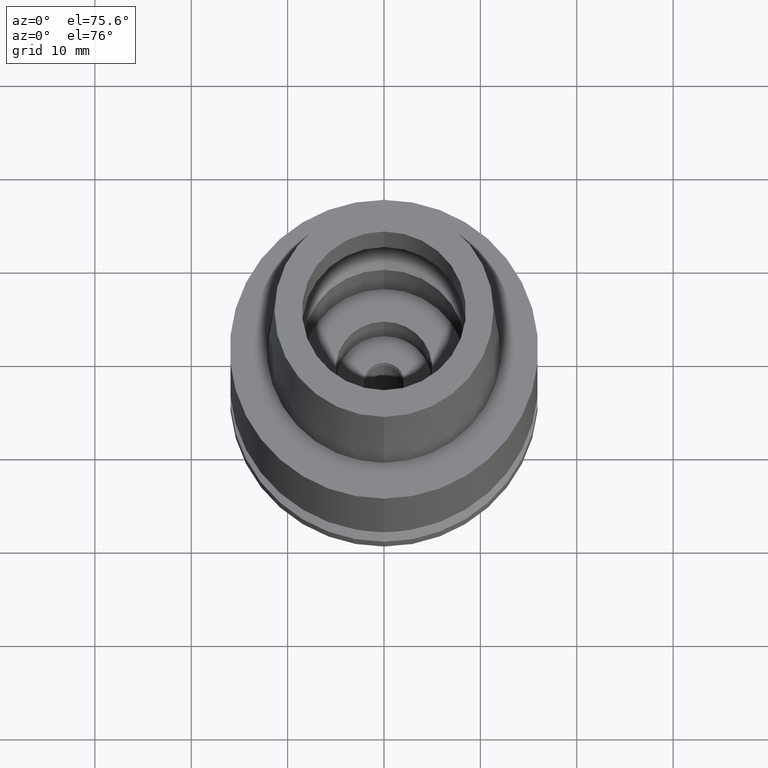
[diagram: clean part render]
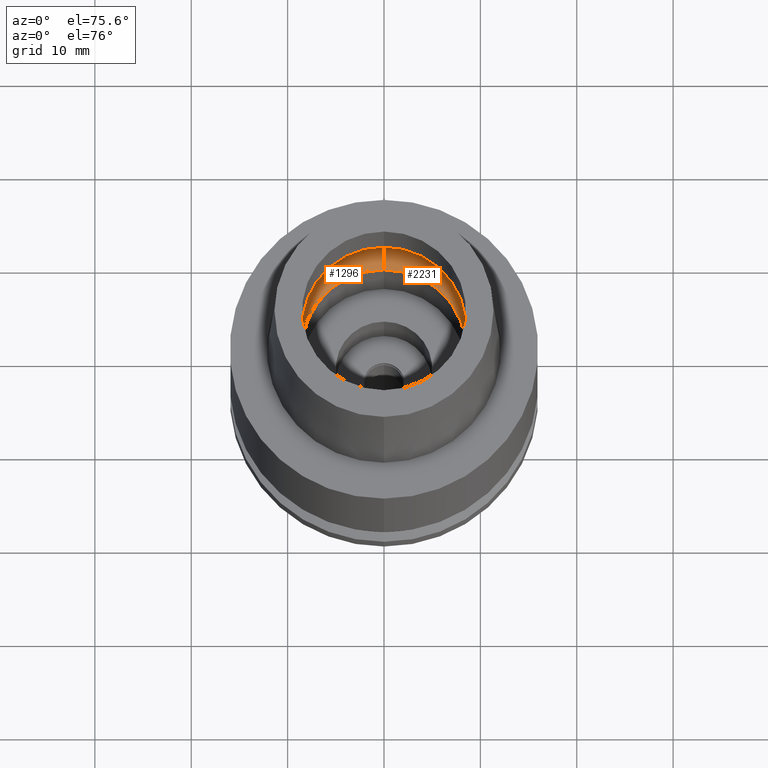
[diagram: same view with one multi-face feature highlighted, each face labeled with its STEP entity id]
A machine part, auxiliary view. The highlighted faces form ONE feature: a constant-radius fillet chain: 2 tangent blend faces with common blend radius 4 mm. The faces share edges in the B-rep.
Their STEP definitions:
[1] entity #1296 (Torus):
#13 = ORIENTED_EDGE ( 'NONE', *, *, #1220, .F. ) ;
#127 = EDGE_CURVE ( 'NONE', #856, #2577, #2622, .T. ) ;
#191 = CARTESIAN_POINT ( 'NONE',  ( 0.0000000000000000000, 6.250000000000000000, 3.357000000000000206 ) ) ;
#290 = EDGE_LOOP ( 'NONE', ( #664, #13, #2167, #1748 ) ) ;
#409 = CARTESIAN_POINT ( 'NONE',  ( 0.0000000000000000000, 8.500000000000000000, 0.04981086116925999979 ) ) ;
#424 = DIRECTION ( 'NONE',  ( 0.0000000000000000000, 0.0000000000000000000, -1.000000000000000000 ) ) ;
#480 = DIRECTION ( 'NONE',  ( 0.0000000000000000000, 0.0000000000000000000, 1.000000000000000000 ) ) ;
#489 = CARTESIAN_POINT ( 'NONE',  ( 0.0000000000000000000, 10.25000000000000000, 3.357000000000000206 ) ) ;
#554 = DIRECTION ( 'NONE',  ( 0.0000000000000000000, 0.0000000000000000000, -1.000000000000000000 ) ) ;
#559 = EDGE_CURVE ( 'NONE', #1555, #908, #2313, .T. ) ;
#588 = FACE_OUTER_BOUND ( 'NONE', #290, .T. ) ;
#664 = ORIENTED_EDGE ( 'NONE', *, *, #127, .F. ) ;
#674 = TOROIDAL_SURFACE ( 'NONE', #2318, 6.250000000000000000, 4.000000000000000000 ) ;
#781 = DIRECTION ( 'NONE',  ( 0.0000000000000000000, -1.000000000000000000, 0.0000000000000000000 ) ) ;
#801 = DIRECTION ( 'NONE',  ( 0.0000000000000000000, -1.000000000000000000, 0.0000000000000000000 ) ) ;
#856 = VERTEX_POINT ( 'NONE', #1012 ) ;
#908 = VERTEX_POINT ( 'NONE', #2692 ) ;
#1010 = DIRECTION ( 'NONE',  ( 0.0000000000000000000, -0.5624999999999932276, -0.8267972847076892062 ) ) ;
#1012 = CARTESIAN_POINT ( 'NONE',  ( 0.0000000000000000000, -10.25000000000000000, 3.357000000000000206 ) ) ;
#1220 = EDGE_CURVE ( 'NONE', #908, #856, #1314, .T. ) ;
#1232 = CARTESIAN_POINT ( 'NONE',  ( 0.0000000000000000000, 0.0000000000000000000, 3.357000000000000206 ) ) ;
#1296 = ADVANCED_FACE ( 'NONE', ( #588 ), #674, .F. ) ;
#1309 = DIRECTION ( 'NONE',  ( 0.0000000000000000000, 1.000000000000000000, 0.0000000000000000000 ) ) ;
#1314 = CIRCLE ( 'NONE', #2540, 3.999999999999999112 ) ;
#1409 = AXIS2_PLACEMENT_3D ( 'NONE', #191, #1639, #1654 ) ;
#1457 = EDGE_CURVE ( 'NONE', #1555, #2577, #1932, .T. ) ;
#1482 = AXIS2_PLACEMENT_3D ( 'NONE', #1232, #554, #781 ) ;
#1555 = VERTEX_POINT ( 'NONE', #409 ) ;
#1639 = DIRECTION ( 'NONE',  ( 1.000000000000000000, 0.0000000000000000000, 0.0000000000000000000 ) ) ;
#1654 = DIRECTION ( 'NONE',  ( 0.0000000000000000000, 0.5624999999999932276, -0.8267972847076892062 ) ) ;
#1725 = CARTESIAN_POINT ( 'NONE',  ( 0.0000000000000000000, 0.0000000000000000000, 0.04981086116925999979 ) ) ;
#1748 = ORIENTED_EDGE ( 'NONE', *, *, #1457, .T. ) ;
#1932 = CIRCLE ( 'NONE', #1409, 3.999999999999999112 ) ;
#1967 = AXIS2_PLACEMENT_3D ( 'NONE', #1725, #480, #1309 ) ;
#2092 = CARTESIAN_POINT ( 'NONE',  ( 0.0000000000000000000, -6.250000000000000000, 3.357000000000000206 ) ) ;
#2167 = ORIENTED_EDGE ( 'NONE', *, *, #559, .F. ) ;
#2313 = CIRCLE ( 'NONE', #1967, 8.500000000000000000 ) ;
#2318 = AXIS2_PLACEMENT_3D ( 'NONE', #2463, #424, #801 ) ;
#2463 = CARTESIAN_POINT ( 'NONE',  ( 0.0000000000000000000, 0.0000000000000000000, 3.357000000000000206 ) ) ;
#2494 = DIRECTION ( 'NONE',  ( -1.000000000000000000, 0.0000000000000000000, 0.0000000000000000000 ) ) ;
#2540 = AXIS2_PLACEMENT_3D ( 'NONE', #2092, #2494, #1010 ) ;
#2577 = VERTEX_POINT ( 'NONE', #489 ) ;
#2622 = CIRCLE ( 'NONE', #1482, 10.25000000000000000 ) ;
#2692 = CARTESIAN_POINT ( 'NONE',  ( 0.0000000000000000000, -8.500000000000000000, 0.04981086116925999979 ) ) ;
[2] entity #2231 (Torus):
#191 = CARTESIAN_POINT ( 'NONE',  ( 0.0000000000000000000, 6.250000000000000000, 3.357000000000000206 ) ) ;
#203 = DIRECTION ( 'NONE',  ( 0.0000000000000000000, 0.0000000000000000000, -1.000000000000000000 ) ) ;
#402 = EDGE_CURVE ( 'NONE', #908, #1555, #2310, .T. ) ;
#409 = CARTESIAN_POINT ( 'NONE',  ( 0.0000000000000000000, 8.500000000000000000, 0.04981086116925999979 ) ) ;
#489 = CARTESIAN_POINT ( 'NONE',  ( 0.0000000000000000000, 10.25000000000000000, 3.357000000000000206 ) ) ;
#712 = ORIENTED_EDGE ( 'NONE', *, *, #1316, .F. ) ;
#856 = VERTEX_POINT ( 'NONE', #1012 ) ;
#876 = AXIS2_PLACEMENT_3D ( 'NONE', #1188, #203, #1830 ) ;
#908 = VERTEX_POINT ( 'NONE', #2692 ) ;
#948 = ORIENTED_EDGE ( 'NONE', *, *, #1220, .T. ) ;
#1010 = DIRECTION ( 'NONE',  ( 0.0000000000000000000, -0.5624999999999932276, -0.8267972847076892062 ) ) ;
#1012 = CARTESIAN_POINT ( 'NONE',  ( 0.0000000000000000000, -10.25000000000000000, 3.357000000000000206 ) ) ;
#1019 = DIRECTION ( 'NONE',  ( 0.0000000000000000000, 0.0000000000000000000, -1.000000000000000000 ) ) ;
#1051 = DIRECTION ( 'NONE',  ( 0.0000000000000000000, -1.000000000000000000, 0.0000000000000000000 ) ) ;
#1135 = AXIS2_PLACEMENT_3D ( 'NONE', #2431, #1689, #1051 ) ;
#1188 = CARTESIAN_POINT ( 'NONE',  ( 0.0000000000000000000, 0.0000000000000000000, 3.357000000000000206 ) ) ;
#1209 = DIRECTION ( 'NONE',  ( 0.0000000000000000000, 1.000000000000000000, 0.0000000000000000000 ) ) ;
#1220 = EDGE_CURVE ( 'NONE', #908, #856, #1314, .T. ) ;
#1234 = CIRCLE ( 'NONE', #1366, 10.25000000000000000 ) ;
#1314 = CIRCLE ( 'NONE', #2540, 3.999999999999999112 ) ;
#1316 = EDGE_CURVE ( 'NONE', #2577, #856, #1234, .T. ) ;
#1366 = AXIS2_PLACEMENT_3D ( 'NONE', #1414, #1019, #1209 ) ;
#1409 = AXIS2_PLACEMENT_3D ( 'NONE', #191, #1639, #1654 ) ;
#1414 = CARTESIAN_POINT ( 'NONE',  ( 0.0000000000000000000, 0.0000000000000000000, 3.357000000000000206 ) ) ;
#1437 = FACE_OUTER_BOUND ( 'NONE', #1463, .T. ) ;
#1457 = EDGE_CURVE ( 'NONE', #1555, #2577, #1932, .T. ) ;
#1463 = EDGE_LOOP ( 'NONE', ( #2333, #948, #712, #1933 ) ) ;
#1555 = VERTEX_POINT ( 'NONE', #409 ) ;
#1569 = TOROIDAL_SURFACE ( 'NONE', #876, 6.250000000000000000, 4.000000000000000000 ) ;
#1639 = DIRECTION ( 'NONE',  ( 1.000000000000000000, 0.0000000000000000000, 0.0000000000000000000 ) ) ;
#1654 = DIRECTION ( 'NONE',  ( 0.0000000000000000000, 0.5624999999999932276, -0.8267972847076892062 ) ) ;
#1689 = DIRECTION ( 'NONE',  ( 0.0000000000000000000, 0.0000000000000000000, 1.000000000000000000 ) ) ;
#1830 = DIRECTION ( 'NONE',  ( 0.0000000000000000000, -1.000000000000000000, 0.0000000000000000000 ) ) ;
#1932 = CIRCLE ( 'NONE', #1409, 3.999999999999999112 ) ;
#1933 = ORIENTED_EDGE ( 'NONE', *, *, #1457, .F. ) ;
#2092 = CARTESIAN_POINT ( 'NONE',  ( 0.0000000000000000000, -6.250000000000000000, 3.357000000000000206 ) ) ;
#2231 = ADVANCED_FACE ( 'NONE', ( #1437 ), #1569, .F. ) ;
#2310 = CIRCLE ( 'NONE', #1135, 8.500000000000000000 ) ;
#2333 = ORIENTED_EDGE ( 'NONE', *, *, #402, .F. ) ;
#2431 = CARTESIAN_POINT ( 'NONE',  ( 0.0000000000000000000, 0.0000000000000000000, 0.04981086116925999979 ) ) ;
#2494 = DIRECTION ( 'NONE',  ( -1.000000000000000000, 0.0000000000000000000, 0.0000000000000000000 ) ) ;
#2540 = AXIS2_PLACEMENT_3D ( 'NONE', #2092, #2494, #1010 ) ;
#2577 = VERTEX_POINT ( 'NONE', #489 ) ;
#2692 = CARTESIAN_POINT ( 'NONE',  ( 0.0000000000000000000, -8.500000000000000000, 0.04981086116925999979 ) ) ;